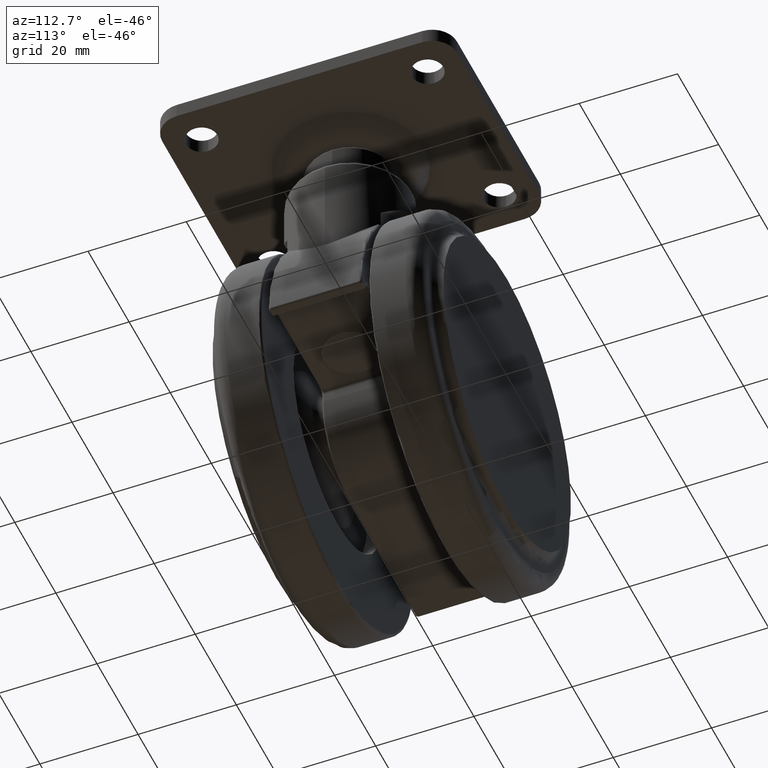
[diagram: clean part render]
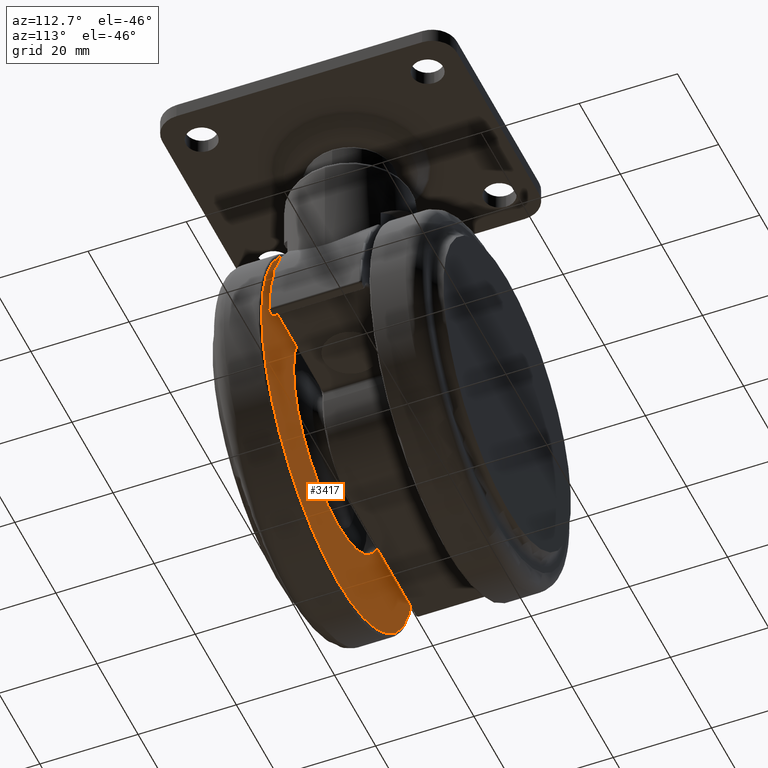
[diagram: same view with one face highlighted and labeled with its STEP entity id]
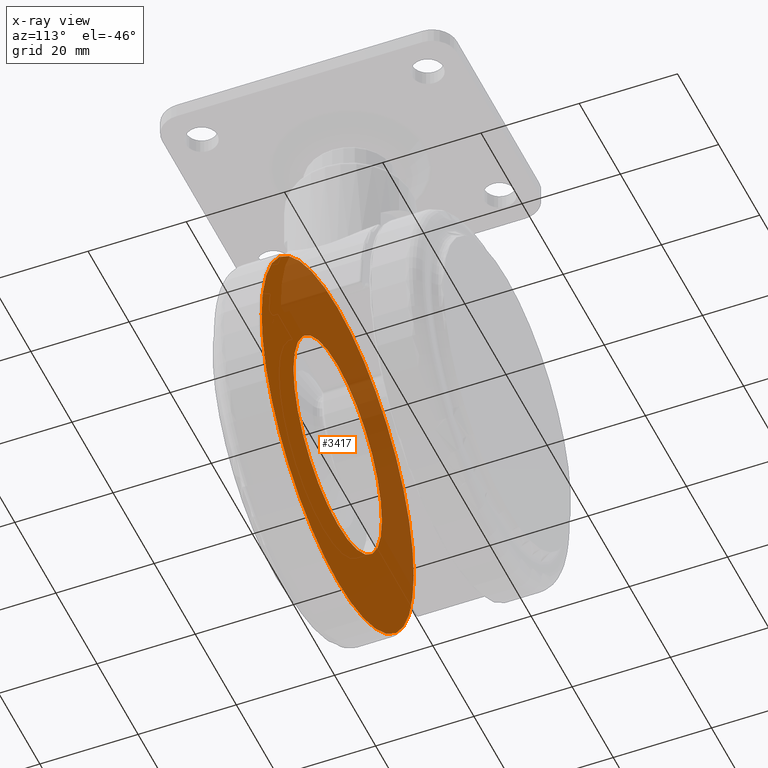
[diagram: x-ray of the same camera — body ghosted, the highlighted face saturated]
A machine part, auxiliary view. The second image highlights one B-rep face of the part: STEP entity #3417.
The next image is the same camera in x-ray: the body ghosted, the highlighted face saturated — about 43% of this face is hidden behind the body in this view.
In plain terms, the highlighted planar face has unit normal (0, 1, 0).
Its self-contained STEP definition (entity closure, byte-faithful):
#3 = AXIS2_PLACEMENT_3D ( 'NONE', #397, #2749, #731 ) ;
#83 = DIRECTION ( 'NONE',  ( 0.0000000000000000000, 0.0000000000000000000, 1.000000000000000000 ) ) ;
#110 = CARTESIAN_POINT ( 'NONE',  ( -20.00000000000000000, -11.00000000000000000, -40.50000000000000000 ) ) ;
#209 = FACE_OUTER_BOUND ( 'NONE', #1358, .T. ) ;
#368 = VERTEX_POINT ( 'NONE', #432 ) ;
#397 = CARTESIAN_POINT ( 'NONE',  ( -20.00000000000000000, -11.00000000000000000, -40.50000000000000000 ) ) ;
#432 = CARTESIAN_POINT ( 'NONE',  ( -20.00000000000000000, -11.00000000000000000, -77.50000000000000000 ) ) ;
#455 = DIRECTION ( 'NONE',  ( 0.0000000000000000000, 0.0000000000000000000, -1.000000000000000000 ) ) ;
#621 = CIRCLE ( 'NONE', #2876, 21.50000000000000000 ) ;
#731 = DIRECTION ( 'NONE',  ( 0.0000000000000000000, 0.0000000000000000000, -1.000000000000000000 ) ) ;
#742 = PLANE ( 'NONE',  #1505 ) ;
#784 = CARTESIAN_POINT ( 'NONE',  ( -19.99999999999999600, -11.00000000000000000, -3.500000000000003100 ) ) ;
#836 = CARTESIAN_POINT ( 'NONE',  ( -19.99999999999999600, -11.00000000000000000, -19.00000000000000400 ) ) ;
#1036 = DIRECTION ( 'NONE',  ( 0.0000000000000000000, -1.000000000000000000, 0.0000000000000000000 ) ) ;
#1094 = CARTESIAN_POINT ( 'NONE',  ( -57.00000000000000000, -11.00000000000000000, -40.50000000000000000 ) ) ;
#1237 = CARTESIAN_POINT ( 'NONE',  ( -20.00000000000000000, -11.00000000000000000, -40.50000000000000000 ) ) ;
#1265 = EDGE_LOOP ( 'NONE', ( #3445, #3464 ) ) ;
#1358 = EDGE_LOOP ( 'NONE', ( #2390, #1668 ) ) ;
#1471 = VERTEX_POINT ( 'NONE', #784 ) ;
#1505 = AXIS2_PLACEMENT_3D ( 'NONE', #1094, #2103, #83 ) ;
#1568 = DIRECTION ( 'NONE',  ( 0.0000000000000000000, 0.0000000000000000000, -1.000000000000000000 ) ) ;
#1588 = EDGE_CURVE ( 'NONE', #2237, #4007, #3617, .T. ) ;
#1649 = AXIS2_PLACEMENT_3D ( 'NONE', #110, #2460, #455 ) ;
#1668 = ORIENTED_EDGE ( 'NONE', *, *, #2848, .F. ) ;
#2103 = DIRECTION ( 'NONE',  ( 0.0000000000000000000, 1.000000000000000000, 0.0000000000000000000 ) ) ;
#2168 = EDGE_CURVE ( 'NONE', #4007, #2237, #621, .T. ) ;
#2191 = CIRCLE ( 'NONE', #3239, 37.00000000000000000 ) ;
#2237 = VERTEX_POINT ( 'NONE', #2402 ) ;
#2305 = EDGE_CURVE ( 'NONE', #368, #1471, #3293, .T. ) ;
#2390 = ORIENTED_EDGE ( 'NONE', *, *, #2305, .F. ) ;
#2402 = CARTESIAN_POINT ( 'NONE',  ( -20.00000000000000000, -11.00000000000000000, -62.00000000000000000 ) ) ;
#2460 = DIRECTION ( 'NONE',  ( 0.0000000000000000000, -1.000000000000000000, 0.0000000000000000000 ) ) ;
#2749 = DIRECTION ( 'NONE',  ( 0.0000000000000000000, -1.000000000000000000, 0.0000000000000000000 ) ) ;
#2848 = EDGE_CURVE ( 'NONE', #1471, #368, #2191, .T. ) ;
#2876 = AXIS2_PLACEMENT_3D ( 'NONE', #3037, #1036, #3369 ) ;
#3037 = CARTESIAN_POINT ( 'NONE',  ( -20.00000000000000000, -11.00000000000000000, -40.50000000000000000 ) ) ;
#3239 = AXIS2_PLACEMENT_3D ( 'NONE', #1237, #3581, #1568 ) ;
#3293 = CIRCLE ( 'NONE', #1649, 37.00000000000000000 ) ;
#3369 = DIRECTION ( 'NONE',  ( 0.0000000000000000000, 0.0000000000000000000, -1.000000000000000000 ) ) ;
#3417 = ADVANCED_FACE ( 'NONE', ( #3654, #209 ), #742, .T. ) ;
#3445 = ORIENTED_EDGE ( 'NONE', *, *, #1588, .T. ) ;
#3464 = ORIENTED_EDGE ( 'NONE', *, *, #2168, .T. ) ;
#3581 = DIRECTION ( 'NONE',  ( 0.0000000000000000000, -1.000000000000000000, 0.0000000000000000000 ) ) ;
#3617 = CIRCLE ( 'NONE', #3, 21.50000000000000000 ) ;
#3654 = FACE_BOUND ( 'NONE', #1265, .T. ) ;
#4007 = VERTEX_POINT ( 'NONE', #836 ) ;